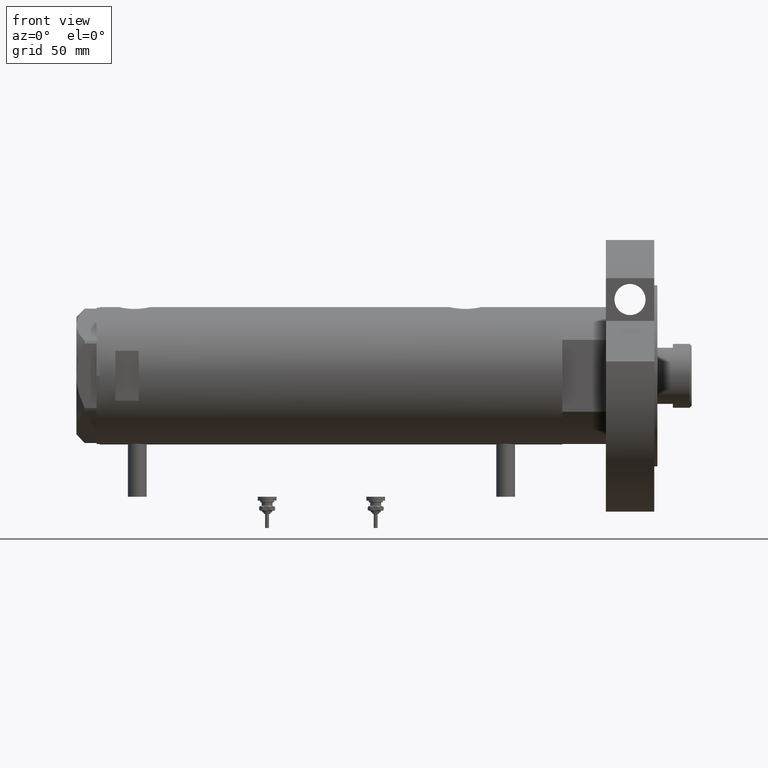
[diagram: clean part render]
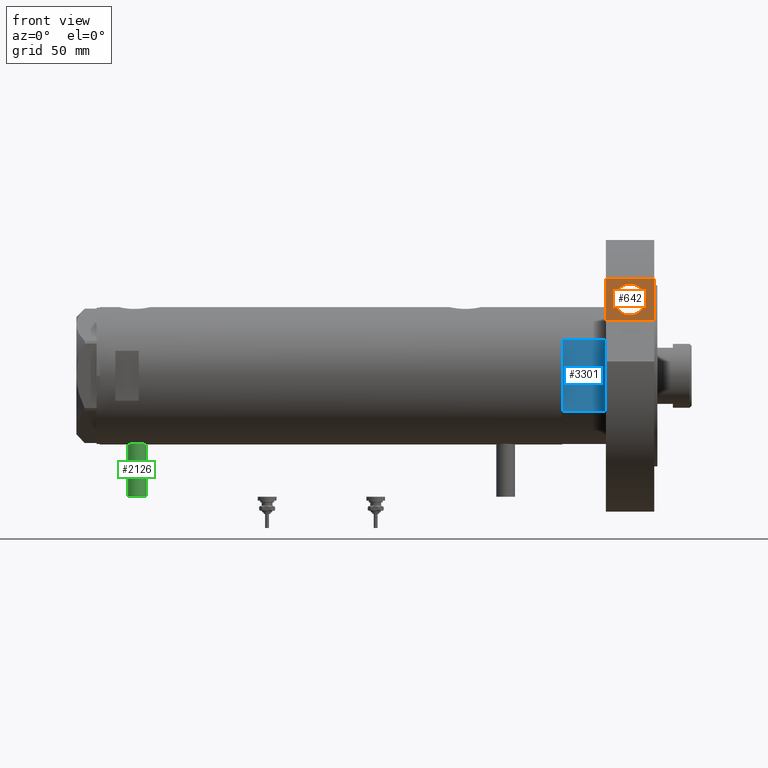
[diagram: same view with three faces highlighted in distinct colors, each labeled with its STEP entity id]
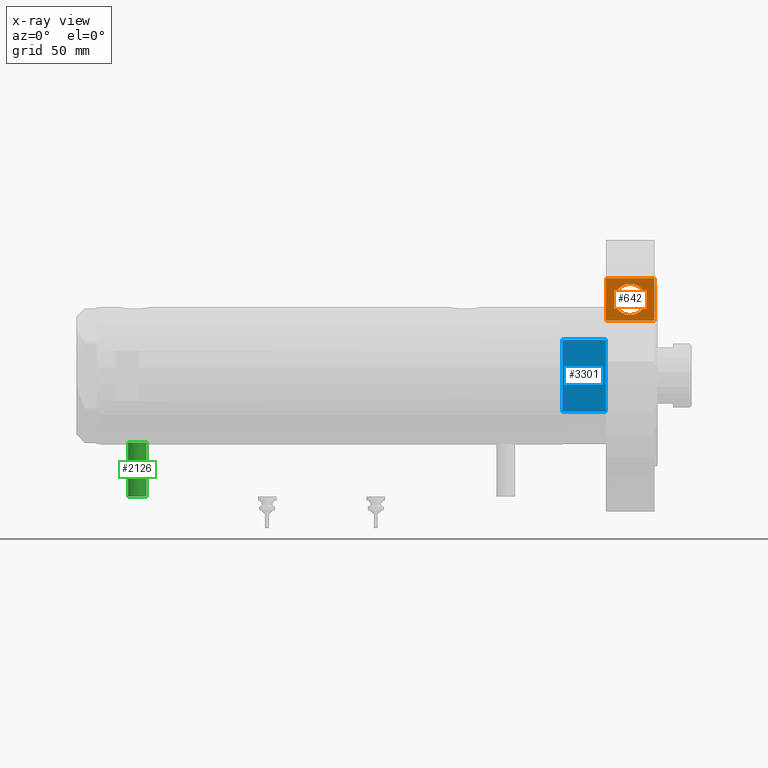
[diagram: x-ray of the same camera — body ghosted, the three highlighted faces saturated]
A machine part, front view with three faces highlighted in distinct colors.
The next image is the same camera in x-ray (body ghosted, the three faces saturated) — at least one of them is partly hidden behind the body in this view.
Their STEP definitions:

[orange] entity #642 — the highlighted planar face has unit normal (-0, 1, 0).
#68 = VERTEX_POINT ( 'NONE', #7044 ) ;
#156 = EDGE_CURVE ( 'NONE', #7402, #1786, #1181, .T. ) ;
#272 = CARTESIAN_POINT ( 'NONE',  ( 35.23236590573035443, 60.47687547247904405, 31.00000000000000000 ) ) ;
#569 = AXIS2_PLACEMENT_3D ( 'NONE', #5033, #7364, #4430 ) ;
#642 = ADVANCED_FACE ( 'NONE', ( #6217, #7442 ), #7404, .F. ) ;
#661 = LINE ( 'NONE', #5236, #5313 ) ;
#687 = CARTESIAN_POINT ( 'NONE',  ( 35.23236590573035443, 60.47687547247904405, 0.000000000000000000 ) ) ;
#844 = DIRECTION ( 'NONE',  ( -0.000000000000000000, -0.000000000000000000, 1.000000000000000000 ) ) ;
#1181 = CIRCLE ( 'NONE', #7024, 10.00000000000000178 ) ;
#1192 = EDGE_LOOP ( 'NONE', ( #1287, #2103 ) ) ;
#1286 = VERTEX_POINT ( 'NONE', #5974 ) ;
#1287 = ORIENTED_EDGE ( 'NONE', *, *, #2261, .T. ) ;
#1492 = ORIENTED_EDGE ( 'NONE', *, *, #1583, .F. ) ;
#1583 = EDGE_CURVE ( 'NONE', #1286, #68, #661, .T. ) ;
#1651 = DIRECTION ( 'NONE',  ( 0.000000000000000000, -0.000000000000000000, -1.000000000000000000 ) ) ;
#1671 = EDGE_CURVE ( 'NONE', #4162, #68, #4259, .T. ) ;
#1726 = LINE ( 'NONE', #5759, #3169 ) ;
#1786 = VERTEX_POINT ( 'NONE', #6143 ) ;
#2103 = ORIENTED_EDGE ( 'NONE', *, *, #156, .T. ) ;
#2261 = EDGE_CURVE ( 'NONE', #1786, #7402, #6904, .T. ) ;
#2753 = DIRECTION ( 'NONE',  ( 1.000000000000000000, 0.000000000000000000, 0.000000000000000000 ) ) ;
#3045 = VECTOR ( 'NONE', #844, 1000.000000000000000 ) ;
#3070 = CARTESIAN_POINT ( 'NONE',  ( 48.88736590573034846, 60.47687547247904405, 15.50000000000000000 ) ) ;
#3169 = VECTOR ( 'NONE', #2753, 1000.000000000000000 ) ;
#3176 = CARTESIAN_POINT ( 'NONE',  ( 0.000000000000000000, 60.47687547247904405, 31.00000000000000000 ) ) ;
#3358 = VECTOR ( 'NONE', #5428, 1000.000000000000000 ) ;
#3807 = CARTESIAN_POINT ( 'NONE',  ( 35.23236590573035443, 60.47687547247904405, 0.000000000000000000 ) ) ;
#3886 = DIRECTION ( 'NONE',  ( 0.000000000000000000, -1.000000000000000000, 0.000000000000000000 ) ) ;
#4134 = VERTEX_POINT ( 'NONE', #3807 ) ;
#4145 = EDGE_LOOP ( 'NONE', ( #6204, #1492, #6903, #4486 ) ) ;
#4162 = VERTEX_POINT ( 'NONE', #272 ) ;
#4259 = LINE ( 'NONE', #3176, #3358 ) ;
#4370 = DIRECTION ( 'NONE',  ( 0.000000000000000000, -1.000000000000000000, 0.000000000000000000 ) ) ;
#4430 = DIRECTION ( 'NONE',  ( 0.000000000000000000, 0.000000000000000000, -1.000000000000000000 ) ) ;
#4486 = ORIENTED_EDGE ( 'NONE', *, *, #7074, .T. ) ;
#5033 = CARTESIAN_POINT ( 'NONE',  ( 48.88736590573034846, 60.47687547247904405, 15.50000000000000000 ) ) ;
#5072 = CARTESIAN_POINT ( 'NONE',  ( 35.23236590573035443, 60.47687547247904405, 0.000000000000000000 ) ) ;
#5236 = CARTESIAN_POINT ( 'NONE',  ( 62.54236590573034249, 60.47687547247904405, 0.000000000000000000 ) ) ;
#5313 = VECTOR ( 'NONE', #6960, 1000.000000000000000 ) ;
#5428 = DIRECTION ( 'NONE',  ( 1.000000000000000000, 0.000000000000000000, -0.000000000000000000 ) ) ;
#5432 = DIRECTION ( 'NONE',  ( 0.000000000000000000, 0.000000000000000000, -1.000000000000000000 ) ) ;
#5573 = AXIS2_PLACEMENT_3D ( 'NONE', #5072, #3886, #1651 ) ;
#5611 = EDGE_CURVE ( 'NONE', #4134, #1286, #1726, .T. ) ;
#5759 = CARTESIAN_POINT ( 'NONE',  ( 35.23236590573035443, 60.47687547247904405, 0.000000000000000000 ) ) ;
#5852 = CARTESIAN_POINT ( 'NONE',  ( 48.88736590573034846, 60.47687547247904405, 5.499999999999998224 ) ) ;
#5974 = CARTESIAN_POINT ( 'NONE',  ( 62.54236590573034249, 60.47687547247904405, 0.000000000000000000 ) ) ;
#6143 = CARTESIAN_POINT ( 'NONE',  ( 48.88736590573034846, 60.47687547247904405, 25.50000000000000355 ) ) ;
#6204 = ORIENTED_EDGE ( 'NONE', *, *, #1671, .T. ) ;
#6217 = FACE_BOUND ( 'NONE', #1192, .T. ) ;
#6492 = LINE ( 'NONE', #687, #3045 ) ;
#6903 = ORIENTED_EDGE ( 'NONE', *, *, #5611, .F. ) ;
#6904 = CIRCLE ( 'NONE', #569, 10.00000000000000178 ) ;
#6960 = DIRECTION ( 'NONE',  ( -0.000000000000000000, -0.000000000000000000, 1.000000000000000000 ) ) ;
#7024 = AXIS2_PLACEMENT_3D ( 'NONE', #3070, #4370, #5432 ) ;
#7044 = CARTESIAN_POINT ( 'NONE',  ( 62.54236590573034249, 60.47687547247904405, 31.00000000000000000 ) ) ;
#7074 = EDGE_CURVE ( 'NONE', #4134, #4162, #6492, .T. ) ;
#7364 = DIRECTION ( 'NONE',  ( 0.000000000000000000, -1.000000000000000000, 0.000000000000000000 ) ) ;
#7402 = VERTEX_POINT ( 'NONE', #5852 ) ;
#7404 = PLANE ( 'NONE',  #5573 ) ;
#7442 = FACE_OUTER_BOUND ( 'NONE', #4145, .T. ) ;

[blue] entity #3301 — the highlighted planar face has unit normal (-0, 1, 0).
#34 = EDGE_CURVE ( 'NONE', #4413, #6809, #4671, .T. ) ;
#92 = CARTESIAN_POINT ( 'NONE',  ( -23.01629857296780557, -37.50000000000000000, 0.000000000000000000 ) ) ;
#153 = CARTESIAN_POINT ( 'NONE',  ( -23.01629857296780557, -37.50000000000000000, 0.000000000000000000 ) ) ;
#278 = EDGE_CURVE ( 'NONE', #2567, #283, #6078, .T. ) ;
#283 = VERTEX_POINT ( 'NONE', #1944 ) ;
#316 = CARTESIAN_POINT ( 'NONE',  ( 23.01629857296780557, -37.50000000000000000, 27.89999999999999858 ) ) ;
#386 = EDGE_CURVE ( 'NONE', #4508, #3590, #6878, .T. ) ;
#586 = CARTESIAN_POINT ( 'NONE',  ( -23.01629857296780557, -37.50000000000000000, 27.89999999999999858 ) ) ;
#1014 = DIRECTION ( 'NONE',  ( -0.000000000000000000, 1.000000000000000000, 0.000000000000000000 ) ) ;
#1026 = DIRECTION ( 'NONE',  ( -1.000000000000000000, -0.000000000000000000, -0.000000000000000000 ) ) ;
#1081 = AXIS2_PLACEMENT_3D ( 'NONE', #2271, #1014, #6959 ) ;
#1224 = CARTESIAN_POINT ( 'NONE',  ( 13.91941090707505957, -37.50000000000000000, 0.000000000000000000 ) ) ;
#1422 = CARTESIAN_POINT ( 'NONE',  ( -23.01629857296780557, -37.50000000000000000, 0.000000000000000000 ) ) ;
#1925 = VECTOR ( 'NONE', #5519, 1000.000000000000000 ) ;
#1944 = CARTESIAN_POINT ( 'NONE',  ( -23.01629857296780557, -37.50000000000000000, 27.89999999999999858 ) ) ;
#2150 = EDGE_CURVE ( 'NONE', #4508, #4413, #4800, .T. ) ;
#2158 = CARTESIAN_POINT ( 'NONE',  ( -13.91941090707505957, -37.50000000000000000, 0.000000000000000000 ) ) ;
#2271 = CARTESIAN_POINT ( 'NONE',  ( -23.01629857296780557, -37.50000000000000000, 0.000000000000000000 ) ) ;
#2489 = DIRECTION ( 'NONE',  ( -1.000000000000000000, -0.000000000000000000, -0.000000000000000000 ) ) ;
#2557 = VECTOR ( 'NONE', #5447, 1000.000000000000000 ) ;
#2567 = VERTEX_POINT ( 'NONE', #4915 ) ;
#2713 = EDGE_CURVE ( 'NONE', #6809, #5833, #3949, .T. ) ;
#2735 = PLANE ( 'NONE',  #1081 ) ;
#3116 = LINE ( 'NONE', #5489, #2557 ) ;
#3184 = CARTESIAN_POINT ( 'NONE',  ( -23.01629857296780557, -37.50000000000000000, 27.89999999999999858 ) ) ;
#3301 = ADVANCED_FACE ( 'NONE', ( #4554 ), #2735, .F. ) ;
#3493 = ORIENTED_EDGE ( 'NONE', *, *, #4494, .F. ) ;
#3590 = VERTEX_POINT ( 'NONE', #316 ) ;
#3617 = ORIENTED_EDGE ( 'NONE', *, *, #34, .F. ) ;
#3661 = DIRECTION ( 'NONE',  ( -1.000000000000000000, -0.000000000000000000, -0.000000000000000000 ) ) ;
#3949 = LINE ( 'NONE', #7357, #7281 ) ;
#4087 = ORIENTED_EDGE ( 'NONE', *, *, #278, .T. ) ;
#4144 = VECTOR ( 'NONE', #2489, 1000.000000000000000 ) ;
#4273 = ORIENTED_EDGE ( 'NONE', *, *, #2713, .F. ) ;
#4413 = VERTEX_POINT ( 'NONE', #1224 ) ;
#4443 = DIRECTION ( 'NONE',  ( -0.000000000000000000, -0.000000000000000000, 1.000000000000000000 ) ) ;
#4481 = CARTESIAN_POINT ( 'NONE',  ( 23.01629857296780557, -37.50000000000000000, 0.000000000000000000 ) ) ;
#4494 = EDGE_CURVE ( 'NONE', #5833, #283, #3116, .T. ) ;
#4508 = VERTEX_POINT ( 'NONE', #4943 ) ;
#4554 = FACE_OUTER_BOUND ( 'NONE', #7025, .T. ) ;
#4671 = LINE ( 'NONE', #92, #7143 ) ;
#4745 = DIRECTION ( 'NONE',  ( -1.000000000000000000, -0.000000000000000000, -0.000000000000000000 ) ) ;
#4800 = LINE ( 'NONE', #153, #7509 ) ;
#4893 = ORIENTED_EDGE ( 'NONE', *, *, #2150, .F. ) ;
#4915 = CARTESIAN_POINT ( 'NONE',  ( 0.000000000000000000, -37.50000000000000000, 27.89999999999999858 ) ) ;
#4943 = CARTESIAN_POINT ( 'NONE',  ( 23.01629857296780557, -37.50000000000000000, 0.000000000000000000 ) ) ;
#5188 = ORIENTED_EDGE ( 'NONE', *, *, #5305, .T. ) ;
#5305 = EDGE_CURVE ( 'NONE', #3590, #2567, #5810, .T. ) ;
#5447 = DIRECTION ( 'NONE',  ( -0.000000000000000000, -0.000000000000000000, 1.000000000000000000 ) ) ;
#5489 = CARTESIAN_POINT ( 'NONE',  ( -23.01629857296780557, -37.50000000000000000, 0.000000000000000000 ) ) ;
#5519 = DIRECTION ( 'NONE',  ( -1.000000000000000000, -0.000000000000000000, -0.000000000000000000 ) ) ;
#5804 = VECTOR ( 'NONE', #4443, 1000.000000000000000 ) ;
#5810 = LINE ( 'NONE', #586, #4144 ) ;
#5833 = VERTEX_POINT ( 'NONE', #1422 ) ;
#6078 = LINE ( 'NONE', #3184, #1925 ) ;
#6104 = ORIENTED_EDGE ( 'NONE', *, *, #386, .T. ) ;
#6809 = VERTEX_POINT ( 'NONE', #2158 ) ;
#6878 = LINE ( 'NONE', #4481, #5804 ) ;
#6959 = DIRECTION ( 'NONE',  ( 0.000000000000000000, -0.000000000000000000, 1.000000000000000000 ) ) ;
#7025 = EDGE_LOOP ( 'NONE', ( #5188, #4087, #3493, #4273, #3617, #4893, #6104 ) ) ;
#7143 = VECTOR ( 'NONE', #4745, 1000.000000000000000 ) ;
#7281 = VECTOR ( 'NONE', #1026, 1000.000000000000000 ) ;
#7357 = CARTESIAN_POINT ( 'NONE',  ( -23.01629857296780557, -37.50000000000000000, 0.000000000000000000 ) ) ;
#7509 = VECTOR ( 'NONE', #3661, 1000.000000000000000 ) ;

[green] entity #2126 — the highlighted cylindrical surface (edge-blend (fillet) strip) has radius 6 mm, axis along (0, 0, 1).
#4 = VERTEX_POINT ( 'NONE', #704 ) ;
#653 = DIRECTION ( 'NONE',  ( 1.000000000000000000, -0.000000000000000000, -0.000000000000000000 ) ) ;
#704 = CARTESIAN_POINT ( 'NONE',  ( -42.79999999999999716, 7.347880794884152277E-16, 130.2000000000000171 ) ) ;
#742 = VECTOR ( 'NONE', #3311, 1000.000000000000000 ) ;
#778 = ORIENTED_EDGE ( 'NONE', *, *, #6121, .F. ) ;
#925 = CARTESIAN_POINT ( 'NONE',  ( -42.79999999999999716, 0.000000000000000000, 118.1999999999999886 ) ) ;
#1271 = FACE_OUTER_BOUND ( 'NONE', #6572, .T. ) ;
#1735 = DIRECTION ( 'NONE',  ( 0.000000000000000000, 0.000000000000000000, -1.000000000000000000 ) ) ;
#1773 = VERTEX_POINT ( 'NONE', #925 ) ;
#1840 = CARTESIAN_POINT ( 'NONE',  ( -77.50000000000000000, 0.000000000000000000, 124.2000000000000028 ) ) ;
#2126 = ADVANCED_FACE ( 'NONE', ( #1271 ), #5875, .T. ) ;
#2180 = LINE ( 'NONE', #5712, #2931 ) ;
#2210 = CIRCLE ( 'NONE', #6951, 6.000000000000005329 ) ;
#2253 = LINE ( 'NONE', #5750, #742 ) ;
#2279 = AXIS2_PLACEMENT_3D ( 'NONE', #5338, #653, #1735 ) ;
#2311 = CARTESIAN_POINT ( 'NONE',  ( -77.50000000000000000, 0.000000000000000000, 118.1999999999999886 ) ) ;
#2334 = DIRECTION ( 'NONE',  ( -1.000000000000000000, 0.000000000000000000, 0.000000000000000000 ) ) ;
#2392 = EDGE_CURVE ( 'NONE', #3387, #3815, #4958, .T. ) ;
#2731 = ORIENTED_EDGE ( 'NONE', *, *, #5404, .T. ) ;
#2886 = AXIS2_PLACEMENT_3D ( 'NONE', #1840, #2334, #4648 ) ;
#2931 = VECTOR ( 'NONE', #7469, 1000.000000000000000 ) ;
#3311 = DIRECTION ( 'NONE',  ( 1.000000000000000000, -0.000000000000000000, -0.000000000000000000 ) ) ;
#3387 = VERTEX_POINT ( 'NONE', #2311 ) ;
#3435 = CARTESIAN_POINT ( 'NONE',  ( -77.50000000000000000, 7.347880794884152277E-16, 130.2000000000000171 ) ) ;
#3815 = VERTEX_POINT ( 'NONE', #3435 ) ;
#4648 = DIRECTION ( 'NONE',  ( 0.000000000000000000, 0.000000000000000000, 1.000000000000000000 ) ) ;
#4958 = CIRCLE ( 'NONE', #2886, 6.000000000000005329 ) ;
#5338 = CARTESIAN_POINT ( 'NONE',  ( -77.50000000000000000, 0.000000000000000000, 124.2000000000000028 ) ) ;
#5404 = EDGE_CURVE ( 'NONE', #1773, #4, #2210, .T. ) ;
#5417 = CARTESIAN_POINT ( 'NONE',  ( -42.79999999999999716, 0.000000000000000000, 124.2000000000000028 ) ) ;
#5526 = ORIENTED_EDGE ( 'NONE', *, *, #2392, .F. ) ;
#5712 = CARTESIAN_POINT ( 'NONE',  ( -77.50000000000000000, 7.347880794884138472E-16, 130.2000000000000171 ) ) ;
#5750 = CARTESIAN_POINT ( 'NONE',  ( -77.50000000000000000, 0.000000000000000000, 118.1999999999999886 ) ) ;
#5875 = CYLINDRICAL_SURFACE ( 'NONE', #2279, 6.000000000000019540 ) ;
#6063 = DIRECTION ( 'NONE',  ( 0.000000000000000000, 0.000000000000000000, 1.000000000000000000 ) ) ;
#6121 = EDGE_CURVE ( 'NONE', #3815, #4, #2180, .T. ) ;
#6136 = EDGE_CURVE ( 'NONE', #3387, #1773, #2253, .T. ) ;
#6572 = EDGE_LOOP ( 'NONE', ( #778, #5526, #6986, #2731 ) ) ;
#6951 = AXIS2_PLACEMENT_3D ( 'NONE', #5417, #7286, #6063 ) ;
#6986 = ORIENTED_EDGE ( 'NONE', *, *, #6136, .T. ) ;
#7286 = DIRECTION ( 'NONE',  ( -1.000000000000000000, 0.000000000000000000, 0.000000000000000000 ) ) ;
#7469 = DIRECTION ( 'NONE',  ( 1.000000000000000000, -0.000000000000000000, -0.000000000000000000 ) ) ;